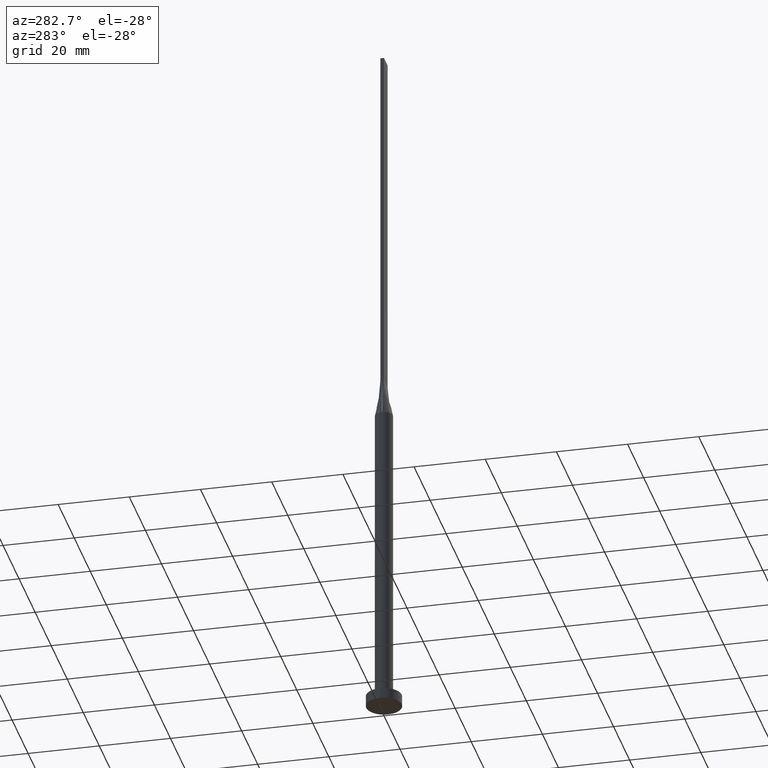
[diagram: clean part render]
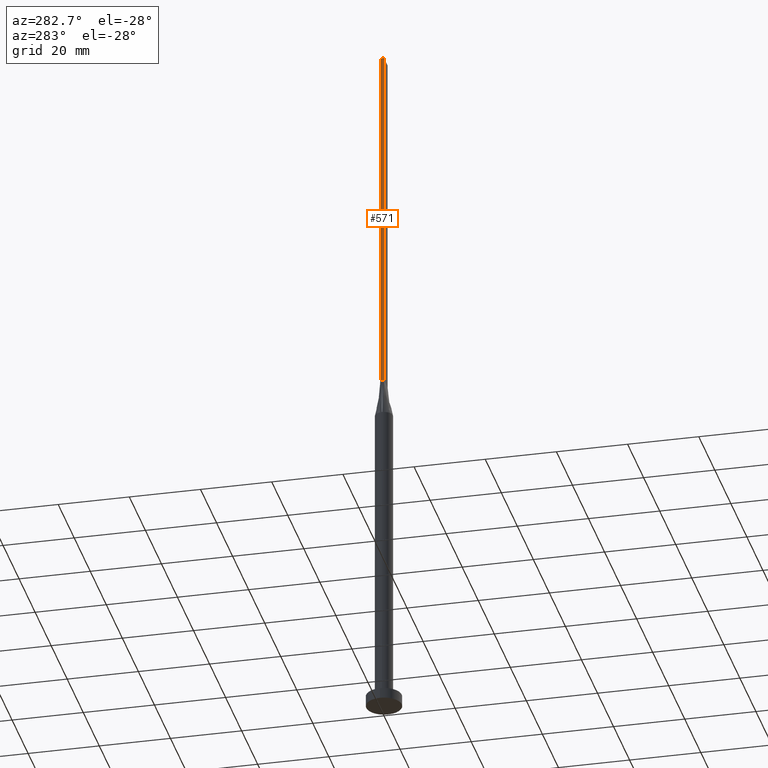
[diagram: same view with one face highlighted and labeled with its STEP entity id]
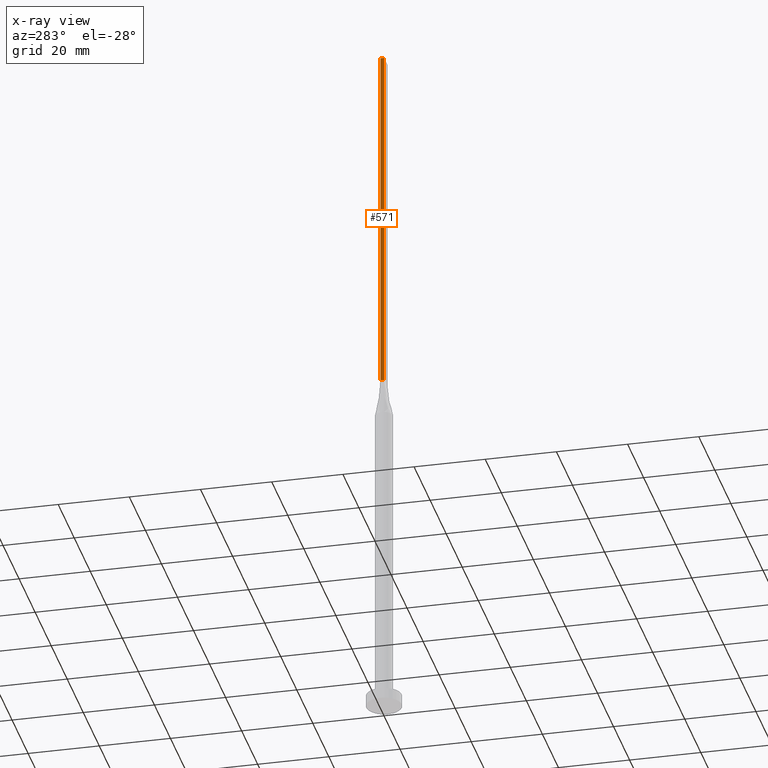
[diagram: x-ray of the same camera — body ghosted, the highlighted face saturated]
A machine part, auxiliary view. The second image highlights one B-rep face of the part: STEP entity #571.
The next image is the same camera in x-ray: the body ghosted, the highlighted face saturated — about 0% of this face is hidden behind the body in this view.
In plain terms, the highlighted planar face has unit normal (1, -0, 0).
Its self-contained STEP definition (entity closure, byte-faithful):
#4 = VERTEX_POINT ( 'NONE', #136 ) ;
#55 = EDGE_LOOP ( 'NONE', ( #390, #68, #186, #218 ) ) ;
#61 = AXIS2_PLACEMENT_3D ( 'NONE', #151, #339, #163 ) ;
#68 = ORIENTED_EDGE ( 'NONE', *, *, #126, .F. ) ;
#111 = CARTESIAN_POINT ( 'NONE',  ( -2.250000000000000000, -0.4999999999999994449, 99.99999999999998579 ) ) ;
#126 = EDGE_CURVE ( 'NONE', #377, #453, #137, .T. ) ;
#136 = CARTESIAN_POINT ( 'NONE',  ( -2.249999999999999556, 0.5000000000000002220, 200.0000000000000000 ) ) ;
#137 = LINE ( 'NONE', #403, #345 ) ;
#151 = CARTESIAN_POINT ( 'NONE',  ( -2.249999999999999556, 0.5000000000000002220, 200.0000000000000000 ) ) ;
#159 = FACE_OUTER_BOUND ( 'NONE', #55, .T. ) ;
#163 = DIRECTION ( 'NONE',  ( 4.336808689942020201E-16, 1.000000000000000000, 0.000000000000000000 ) ) ;
#166 = VERTEX_POINT ( 'NONE', #274 ) ;
#176 = LINE ( 'NONE', #483, #492 ) ;
#186 = ORIENTED_EDGE ( 'NONE', *, *, #212, .F. ) ;
#202 = DIRECTION ( 'NONE',  ( -0.000000000000000000, -0.000000000000000000, -1.000000000000000000 ) ) ;
#212 = EDGE_CURVE ( 'NONE', #4, #377, #176, .T. ) ;
#218 = ORIENTED_EDGE ( 'NONE', *, *, #319, .T. ) ;
#222 = DIRECTION ( 'NONE',  ( -0.000000000000000000, -0.000000000000000000, -1.000000000000000000 ) ) ;
#231 = VECTOR ( 'NONE', #202, 1000.000000000000000 ) ;
#274 = CARTESIAN_POINT ( 'NONE',  ( -2.249999999999999556, 0.5000000000000002220, 99.99999999999998579 ) ) ;
#284 = EDGE_CURVE ( 'NONE', #166, #453, #335, .T. ) ;
#289 = CARTESIAN_POINT ( 'NONE',  ( -2.249999999999999556, 0.5000000000000002220, 200.0000000000000000 ) ) ;
#299 = CARTESIAN_POINT ( 'NONE',  ( -2.250000000000000000, -0.4999999999999994449, 200.0000000000000000 ) ) ;
#319 = EDGE_CURVE ( 'NONE', #4, #166, #499, .T. ) ;
#335 = LINE ( 'NONE', #462, #338 ) ;
#338 = VECTOR ( 'NONE', #503, 1000.000000000000000 ) ;
#339 = DIRECTION ( 'NONE',  ( 1.000000000000000000, -4.336808689942020201E-16, 0.000000000000000000 ) ) ;
#345 = VECTOR ( 'NONE', #222, 1000.000000000000000 ) ;
#351 = DIRECTION ( 'NONE',  ( -4.336808689942019708E-16, -1.000000000000000000, 0.000000000000000000 ) ) ;
#377 = VERTEX_POINT ( 'NONE', #299 ) ;
#390 = ORIENTED_EDGE ( 'NONE', *, *, #284, .T. ) ;
#403 = CARTESIAN_POINT ( 'NONE',  ( -2.250000000000000000, -0.4999999999999994449, 200.0000000000000000 ) ) ;
#453 = VERTEX_POINT ( 'NONE', #111 ) ;
#462 = CARTESIAN_POINT ( 'NONE',  ( -2.249999999999999556, 0.5000000000000002220, 99.99999999999998579 ) ) ;
#483 = CARTESIAN_POINT ( 'NONE',  ( -2.249999999999999556, 0.5000000000000002220, 200.0000000000000000 ) ) ;
#492 = VECTOR ( 'NONE', #351, 1000.000000000000000 ) ;
#499 = LINE ( 'NONE', #289, #231 ) ;
#503 = DIRECTION ( 'NONE',  ( -4.336808689942019708E-16, -1.000000000000000000, 0.000000000000000000 ) ) ;
#504 = PLANE ( 'NONE',  #61 ) ;
#571 = ADVANCED_FACE ( 'NONE', ( #159 ), #504, .F. ) ;